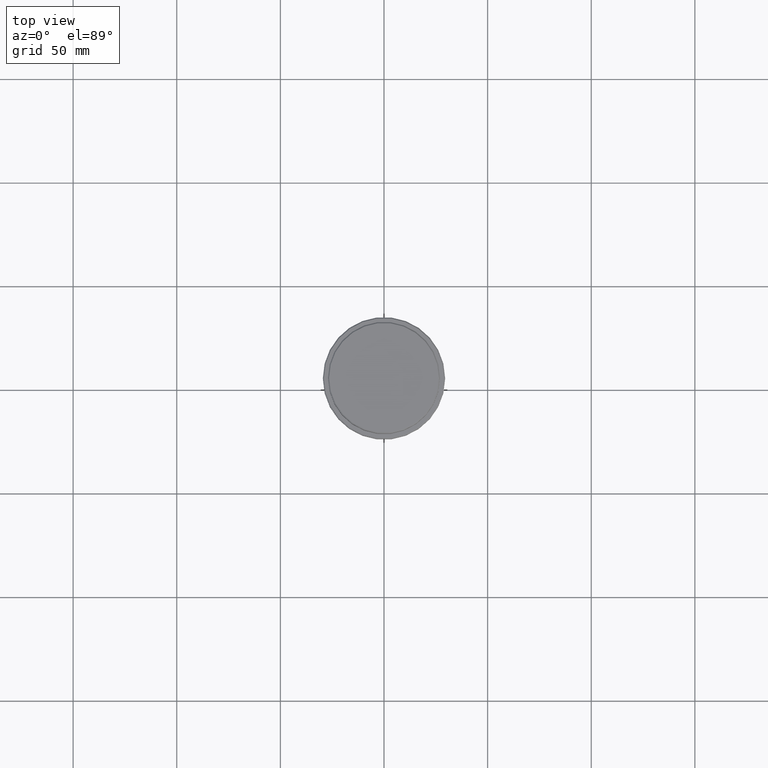
[diagram: clean part render]
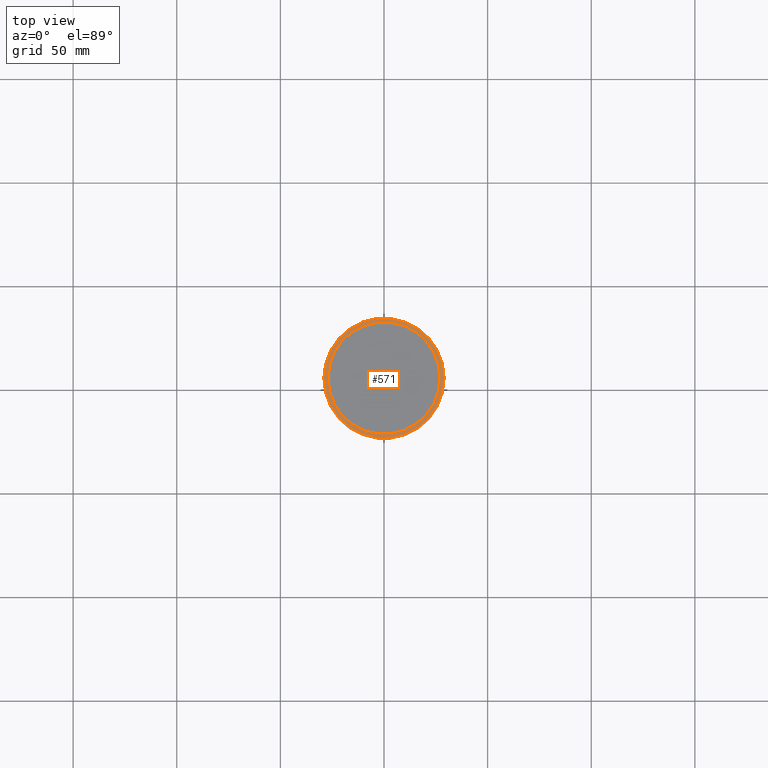
[diagram: same view with one face highlighted and labeled with its STEP entity id]
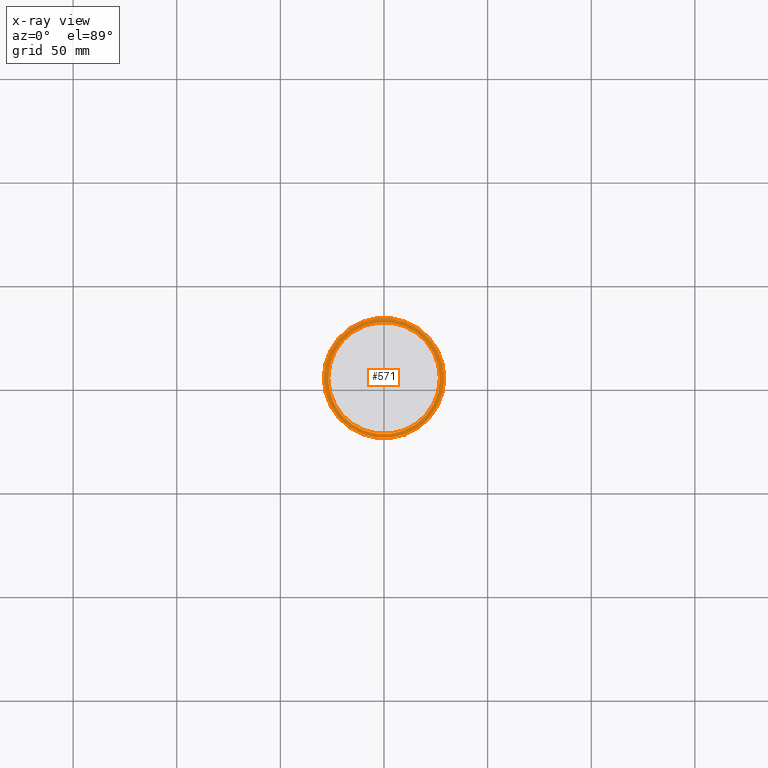
[diagram: x-ray of the same camera — body ghosted, the highlighted face saturated]
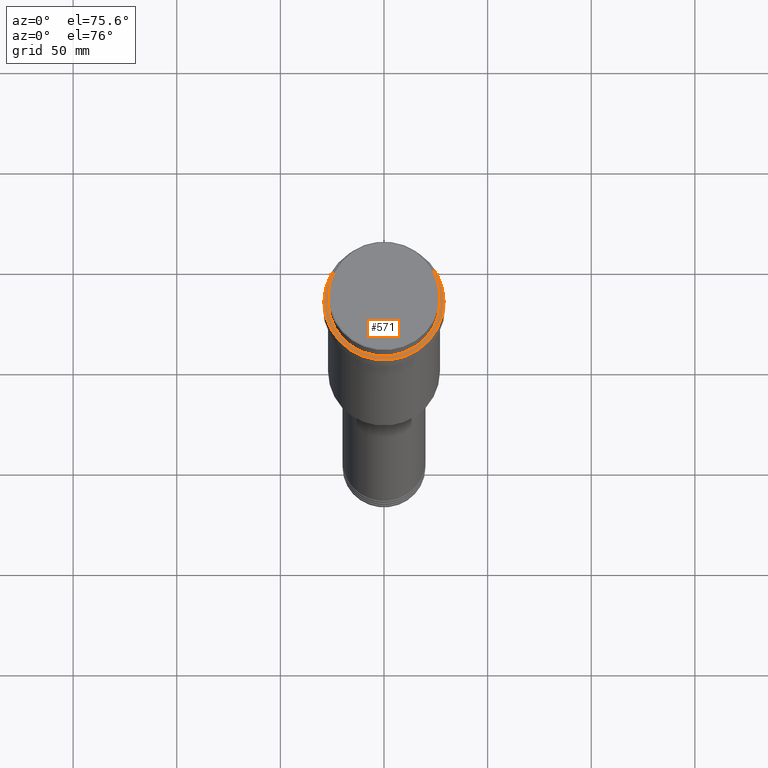
[diagram: same view with one face highlighted and labeled with its STEP entity id]
A machine part, top view. The second image highlights one B-rep face of the part: STEP entity #571.
The next image is the same camera in x-ray: the body ghosted, the highlighted face saturated — about 0% of this face is hidden behind the body in this view.
A second angle (auxiliary view) of the same face is appended — the face is thin or edge-on in the first view.
In plain terms, the highlighted planar face has unit normal (0, -0, 1).
Its self-contained STEP definition (entity closure, byte-faithful):
#9 = CARTESIAN_POINT ( 'NONE',  ( 29.00000000000002487, 3.582091887506009394E-15, -12.00000000000000355 ) ) ;
#33 = EDGE_LOOP ( 'NONE', ( #1394, #957 ) ) ;
#64 = CIRCLE ( 'NONE', #1018, 26.99999999999999645 ) ;
#70 = CIRCLE ( 'NONE', #671, 29.00000000000002487 ) ;
#118 = EDGE_CURVE ( 'NONE', #1360, #371, #1199, .T. ) ;
#160 = ORIENTED_EDGE ( 'NONE', *, *, #1344, .T. ) ;
#176 = ORIENTED_EDGE ( 'NONE', *, *, #118, .T. ) ;
#200 = VERTEX_POINT ( 'NONE', #1095 ) ;
#211 = DIRECTION ( 'NONE',  ( 1.000000000000000000, 0.000000000000000000, 0.000000000000000000 ) ) ;
#224 = DIRECTION ( 'NONE',  ( 0.000000000000000000, -0.000000000000000000, 1.000000000000000000 ) ) ;
#228 = CIRCLE ( 'NONE', #665, 26.99999999999999645 ) ;
#296 = DIRECTION ( 'NONE',  ( -0.000000000000000000, -0.000000000000000000, 1.000000000000000000 ) ) ;
#329 = CARTESIAN_POINT ( 'NONE',  ( 0.000000000000000000, 26.49999999999999645, -12.00000000000000355 ) ) ;
#371 = VERTEX_POINT ( 'NONE', #9 ) ;
#388 = DIRECTION ( 'NONE',  ( 1.000000000000000000, 0.000000000000000000, 0.000000000000000000 ) ) ;
#465 = FACE_BOUND ( 'NONE', #33, .T. ) ;
#571 = ADVANCED_FACE ( 'NONE', ( #868, #465 ), #1209, .T. ) ;
#602 = DIRECTION ( 'NONE',  ( 0.000000000000000000, 0.000000000000000000, -1.000000000000000000 ) ) ;
#610 = AXIS2_PLACEMENT_3D ( 'NONE', #1170, #1371, #388 ) ;
#665 = AXIS2_PLACEMENT_3D ( 'NONE', #1165, #602, #1191 ) ;
#671 = AXIS2_PLACEMENT_3D ( 'NONE', #1190, #296, #1302 ) ;
#672 = DIRECTION ( 'NONE',  ( 0.000000000000000000, 0.000000000000000000, -1.000000000000000000 ) ) ;
#758 = CARTESIAN_POINT ( 'NONE',  ( -29.00000000000002487, 0.000000000000000000, -12.00000000000000355 ) ) ;
#762 = EDGE_CURVE ( 'NONE', #200, #859, #228, .T. ) ;
#797 = EDGE_CURVE ( 'NONE', #859, #200, #64, .T. ) ;
#859 = VERTEX_POINT ( 'NONE', #1139 ) ;
#868 = FACE_OUTER_BOUND ( 'NONE', #1194, .T. ) ;
#957 = ORIENTED_EDGE ( 'NONE', *, *, #797, .T. ) ;
#986 = DIRECTION ( 'NONE',  ( 1.000000000000000000, 0.000000000000000000, 0.000000000000000000 ) ) ;
#1018 = AXIS2_PLACEMENT_3D ( 'NONE', #1221, #672, #211 ) ;
#1095 = CARTESIAN_POINT ( 'NONE',  ( 26.99999999999999645, 0.000000000000000000, -12.00000000000000355 ) ) ;
#1139 = CARTESIAN_POINT ( 'NONE',  ( -26.99999999999999645, 3.306546357697853339E-15, -12.00000000000000355 ) ) ;
#1165 = CARTESIAN_POINT ( 'NONE',  ( 0.000000000000000000, 0.000000000000000000, -12.00000000000000355 ) ) ;
#1170 = CARTESIAN_POINT ( 'NONE',  ( 0.000000000000000000, 0.000000000000000000, -12.00000000000000355 ) ) ;
#1190 = CARTESIAN_POINT ( 'NONE',  ( 0.000000000000000000, 0.000000000000000000, -12.00000000000000355 ) ) ;
#1191 = DIRECTION ( 'NONE',  ( 1.000000000000000000, 0.000000000000000000, 0.000000000000000000 ) ) ;
#1194 = EDGE_LOOP ( 'NONE', ( #176, #160 ) ) ;
#1199 = CIRCLE ( 'NONE', #610, 29.00000000000002487 ) ;
#1209 = PLANE ( 'NONE',  #1223 ) ;
#1221 = CARTESIAN_POINT ( 'NONE',  ( 0.000000000000000000, 0.000000000000000000, -12.00000000000000355 ) ) ;
#1223 = AXIS2_PLACEMENT_3D ( 'NONE', #329, #224, #986 ) ;
#1302 = DIRECTION ( 'NONE',  ( 1.000000000000000000, 0.000000000000000000, 0.000000000000000000 ) ) ;
#1344 = EDGE_CURVE ( 'NONE', #371, #1360, #70, .T. ) ;
#1360 = VERTEX_POINT ( 'NONE', #758 ) ;
#1371 = DIRECTION ( 'NONE',  ( -0.000000000000000000, -0.000000000000000000, 1.000000000000000000 ) ) ;
#1394 = ORIENTED_EDGE ( 'NONE', *, *, #762, .T. ) ;